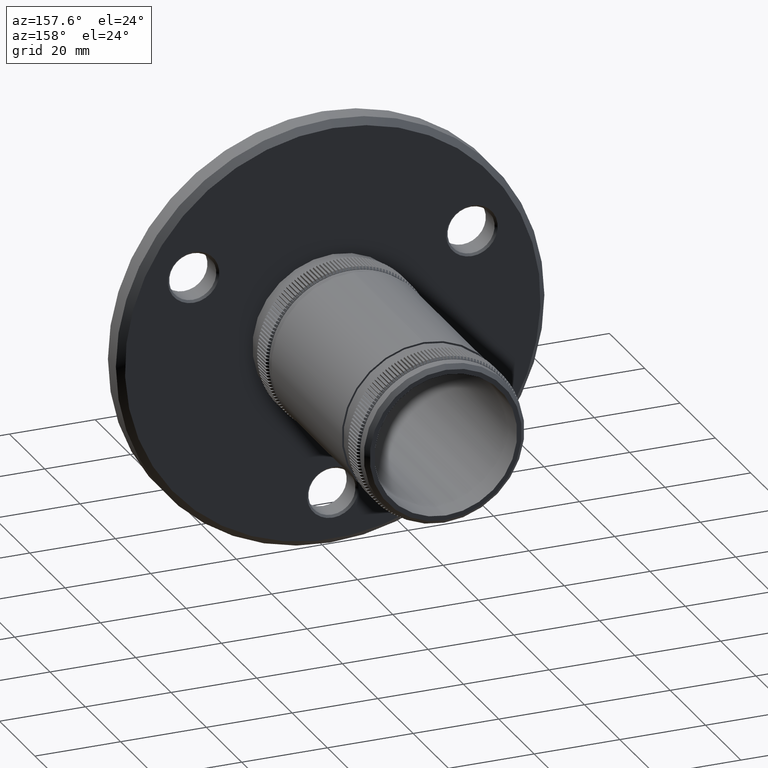
[diagram: clean part render]
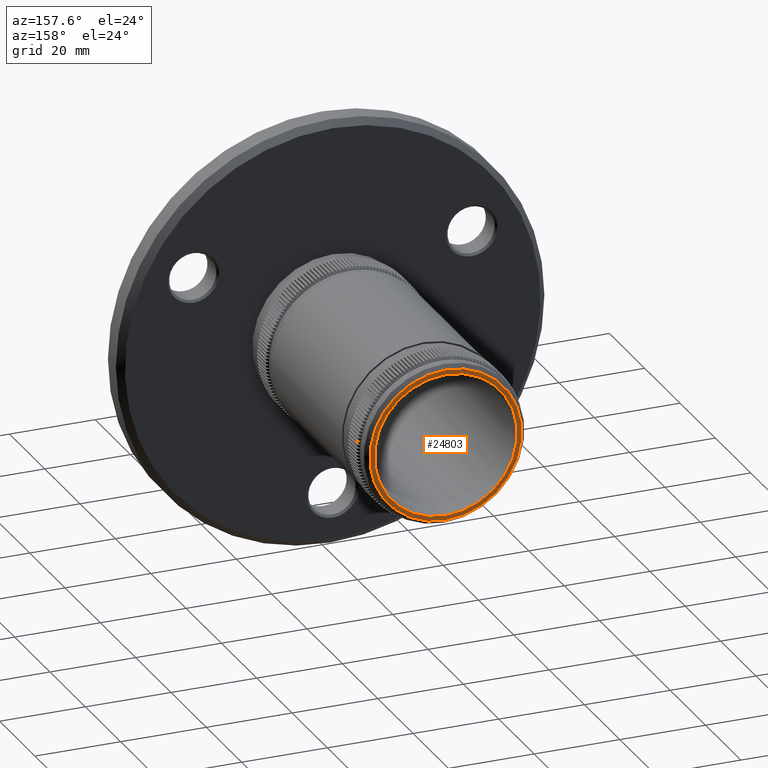
[diagram: same view with one face highlighted and labeled with its STEP entity id]
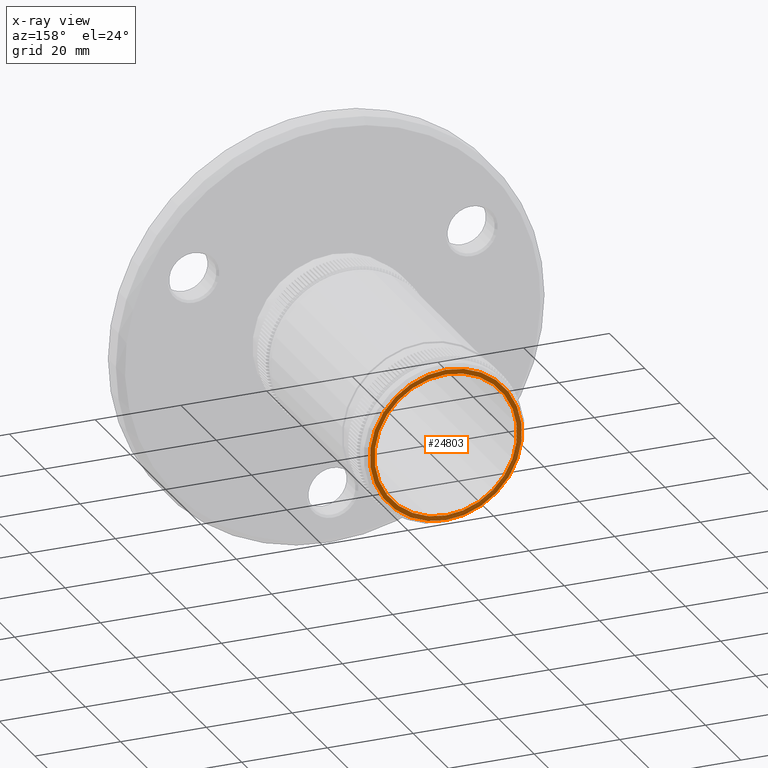
[diagram: x-ray of the same camera — body ghosted, the highlighted face saturated]
A machine part, auxiliary view. The second image highlights one B-rep face of the part: STEP entity #24803.
The next image is the same camera in x-ray: the body ghosted, the highlighted face saturated — about 0% of this face is hidden behind the body in this view.
In plain terms, the highlighted planar face has unit normal (0, 1, 0).
Its self-contained STEP definition (entity closure, byte-faithful):
#1697 = AXIS2_PLACEMENT_3D ( 'NONE', #48059, #63785, #83556 ) ;
#3101 = VERTEX_POINT ( 'NONE', #16837 ) ;
#7472 = VERTEX_POINT ( 'NONE', #60241 ) ;
#16837 = CARTESIAN_POINT ( 'NONE',  ( 0.0000000000000000000, 68.00000000000000000, 17.75000000000000400 ) ) ;
#18993 = CIRCLE ( 'NONE', #65271, 16.64999999999999900 ) ;
#19065 = CIRCLE ( 'NONE', #65971, 17.75000000000000400 ) ;
#20406 = DIRECTION ( 'NONE',  ( 0.0000000000000000000, -1.000000000000000000, 0.0000000000000000000 ) ) ;
#24803 = ADVANCED_FACE ( 'NONE', ( #87965, #52638 ), #62245, .T. ) ;
#25677 = DIRECTION ( 'NONE',  ( 0.0000000000000000000, 0.0000000000000000000, 1.000000000000000000 ) ) ;
#33799 = ORIENTED_EDGE ( 'NONE', *, *, #73305, .T. ) ;
#34934 = CARTESIAN_POINT ( 'NONE',  ( 0.0000000000000000000, 68.00000000000000000, 0.0000000000000000000 ) ) ;
#41985 = DIRECTION ( 'NONE',  ( 0.0000000000000000000, 0.0000000000000000000, -1.000000000000000000 ) ) ;
#46069 = ORIENTED_EDGE ( 'NONE', *, *, #82622, .T. ) ;
#48059 = CARTESIAN_POINT ( 'NONE',  ( 0.0000000000000000000, 68.00000000000000000, 0.0000000000000000000 ) ) ;
#52638 = FACE_OUTER_BOUND ( 'NONE', #72675, .T. ) ;
#59025 = CARTESIAN_POINT ( 'NONE',  ( 0.0000000000000000000, 68.00000000000000000, 0.0000000000000000000 ) ) ;
#60241 = CARTESIAN_POINT ( 'NONE',  ( 0.0000000000000000000, 68.00000000000000000, -16.64999999999999900 ) ) ;
#62245 = PLANE ( 'NONE',  #1697 ) ;
#63785 = DIRECTION ( 'NONE',  ( 0.0000000000000000000, 1.000000000000000000, 0.0000000000000000000 ) ) ;
#63946 = EDGE_LOOP ( 'NONE', ( #33799 ) ) ;
#65271 = AXIS2_PLACEMENT_3D ( 'NONE', #34934, #20406, #41985 ) ;
#65971 = AXIS2_PLACEMENT_3D ( 'NONE', #59025, #80284, #25677 ) ;
#72675 = EDGE_LOOP ( 'NONE', ( #46069 ) ) ;
#73305 = EDGE_CURVE ( 'NONE', #7472, #7472, #18993, .T. ) ;
#80284 = DIRECTION ( 'NONE',  ( 0.0000000000000000000, 1.000000000000000000, 0.0000000000000000000 ) ) ;
#82622 = EDGE_CURVE ( 'NONE', #3101, #3101, #19065, .T. ) ;
#83556 = DIRECTION ( 'NONE',  ( 0.0000000000000000000, -0.0000000000000000000, 1.000000000000000000 ) ) ;
#87965 = FACE_BOUND ( 'NONE', #63946, .T. ) ;